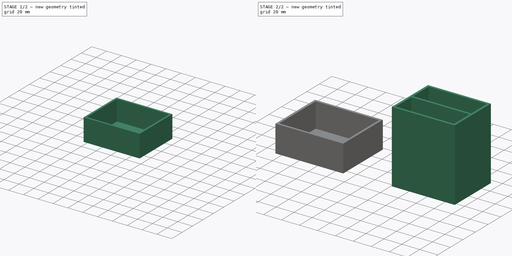
[diagram: build sequence overview — one tinted view per stage of 2, left to right]
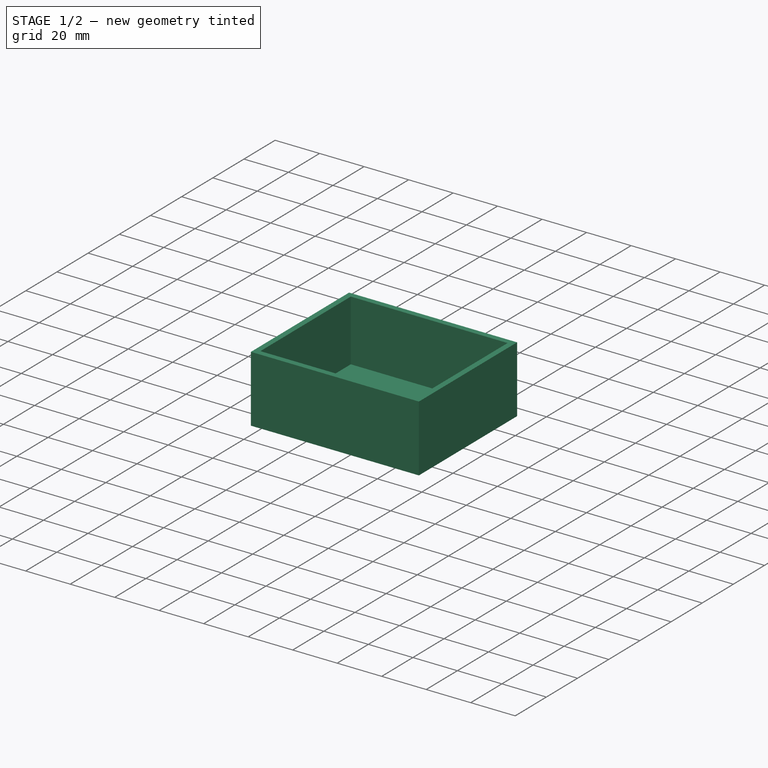
[diagram: stage 1 of 2 — iso view after this stage's code; geometry added in this stage tinted green]
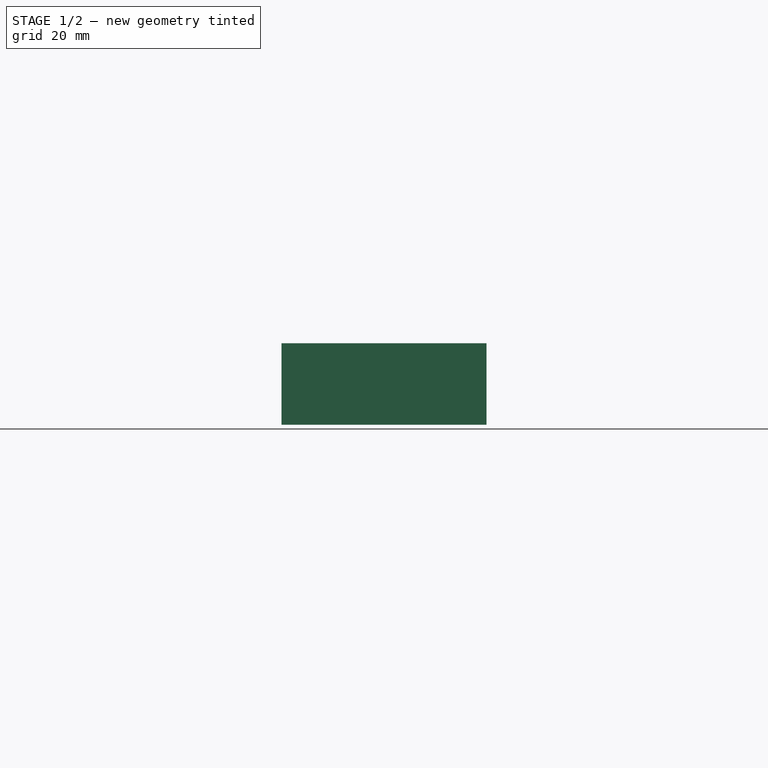
[diagram: stage 1 of 2 — front view after this stage's code; geometry added in this stage tinted green]
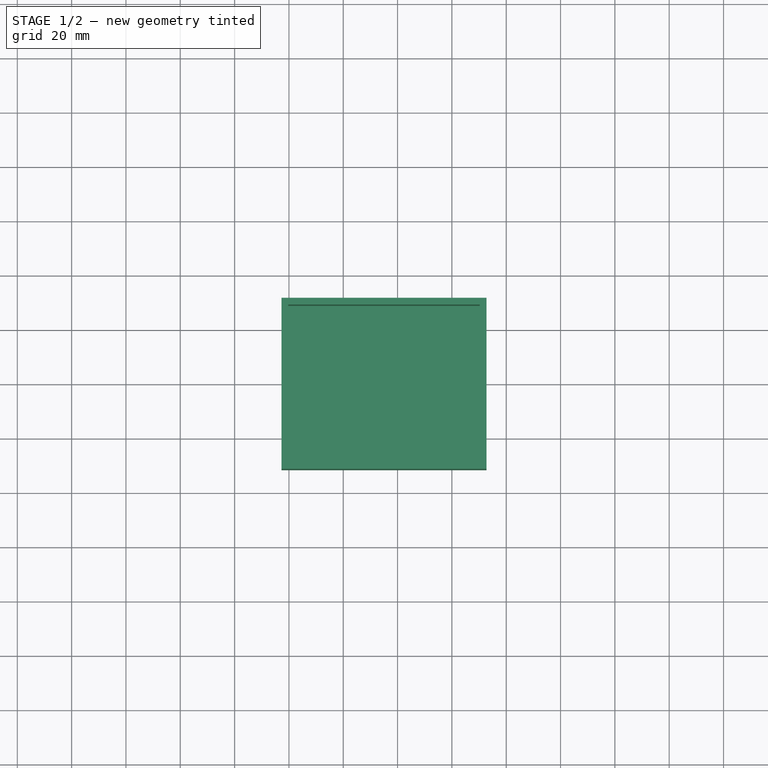
[diagram: stage 1 of 2 — top view after this stage's code; geometry added in this stage tinted green]
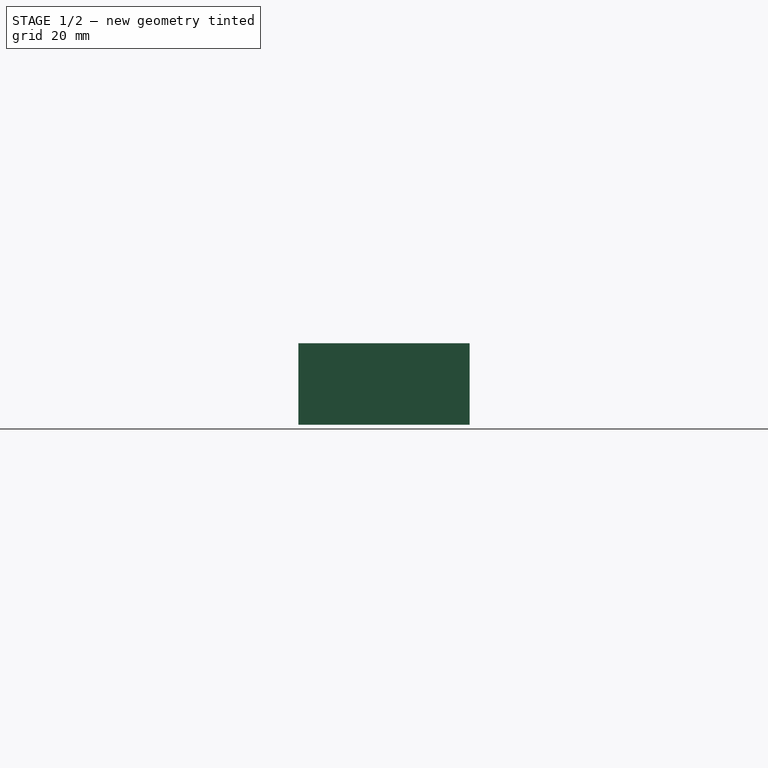
[diagram: stage 1 of 2 — right view after this stage's code; geometry added in this stage tinted green]
FCSTD DOCUMENT  (FreeCAD 0.21R33771 (Git))
Label: CardBox
License: All rights reserved
LicenseURL: https://en.wikipedia.org/wiki/All_rights_reserved
objects: Sketcher::SketchObject×4, PartDesign::Pad×2, PartDesign::Pocket×2, PartDesign::Body×2
note: 14 computed .brp shape members not serialized (recipe doc carries the construction recipe); baked Part::Feature solids carry a one-line shape summary decoded from their .brp

FEATURE [PartDesign::Body] Body  label="Box"
  Group = -> [Sketch,Pad,Sketch001,Pocket]
  Origin = -> Origin
  Tip = -> Pocket
FEATURE [Sketcher::SketchObject] Sketch002  label="LidS"
  FullyConstrained = true
  MapMode = 5
  Support = -> [XY_Plane001]
  sketch-geometry (5):
    g0: LineSegment StartX=-162.75 StartY=31.5 StartZ=0 EndX=-162.75 EndY=-31.5 EndZ=0
    g1: LineSegment StartX=-162.75 StartY=-31.5 StartZ=0 EndX=-87.25 EndY=-31.5 EndZ=0
    g2: LineSegment StartX=-87.25 StartY=-31.5 StartZ=0 EndX=-87.25 EndY=31.5 EndZ=0
    g3: LineSegment StartX=-87.25 StartY=31.5 StartZ=0 EndX=-162.75 EndY=31.5 EndZ=0
    g4: GeomPoint X=-125 Y=0 Z=0
  constraints (13):
    c: Coincident(g0,g1)
    c: Coincident(g1,g2)
    c: Coincident(g2,g3)
    c: Coincident(g3,g0)
    c: Horizontal(g1)
    c: Horizontal(g3)
    c: Vertical(g0)
    c: Vertical(g2)
    c: Symmetric(g1,g0,g4)
    c: PointOnObject(g4,g-1)
    c: Distance(g3) = 75.5
    c: Distance(g0) = 63
    c: DistanceX(g4,g-1) = 125
FEATURE [PartDesign::Pad] Pad001  label="LidSP"
  Direction = (0,0,1)
  Length = 30
  Length2 = 10
  Profile = -> Sketch002
  ReferenceAxis = -> Sketch002 [N_Axis]
  Type = 0
FEATURE [Sketcher::SketchObject] Sketch003  label="InsetS2"
  ExternalGeometry = -> [Pad001]
  FullyConstrained = true
  MapMode = 5
  Placement = pos=(0,0,30) rot=(0,0,1;0rad)
  Support = -> [Pad001]
  sketch-geometry (5):
    g0: LineSegment StartX=-160.25 StartY=29 StartZ=0 EndX=-160.25 EndY=-29 EndZ=0
    g1: LineSegment StartX=-160.25 StartY=-29 StartZ=0 EndX=-89.75 EndY=-29 EndZ=0
    g2: LineSegment StartX=-89.75 StartY=-29 StartZ=0 EndX=-89.75 EndY=29 EndZ=0
    g3: LineSegment StartX=-89.75 StartY=29 StartZ=0 EndX=-160.25 EndY=29 EndZ=0
    g4: GeomPoint X=-125 Y=0 Z=0
  constraints (13):
    c: Coincident(g0,g1)
    c: Coincident(g1,g2)
    c: Coincident(g2,g3)
    c: Coincident(g3,g0)
    c: Horizontal(g1)
    c: Horizontal(g3)
    c: Vertical(g0)
    c: Vertical(g2)
    c: Symmetric(g1,g0,g4)
    c: PointOnObject(g4,g-1)
    c: DistanceX(g-4,g0) = 2.5
    c: DistanceY(g0,g-4) = 2.5
    c: DistanceX(g1,g-6) = 2.5
FEATURE [PartDesign::Pocket] Pocket001  label="InsetSP2"
  BaseFeature = -> Pad001
  Direction = (0,0,-1)
  Length = 27.5
  Length2 = 5
  Profile = -> Sketch003
  ReferenceAxis = -> Sketch003 [N_Axis]
  Type = 0
FEATURE [PartDesign::Body] Body001  label="Lid"
  Group = -> [Sketch002,Pad001,Sketch003,Pocket001]
  Origin = -> Origin001
  Tip = -> Pocket001
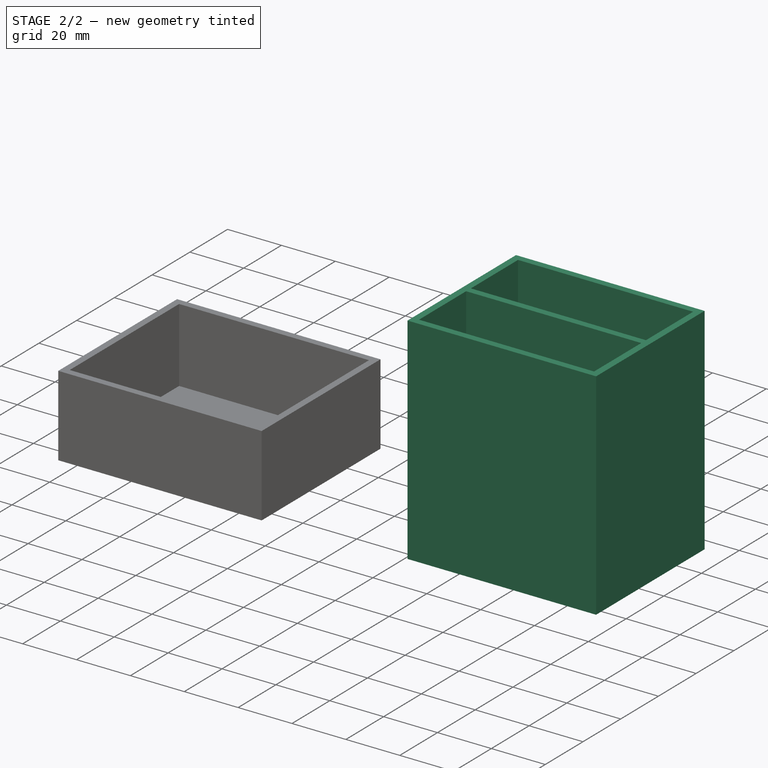
[diagram: stage 2 of 2 — iso view after this stage's code; geometry added in this stage tinted green]
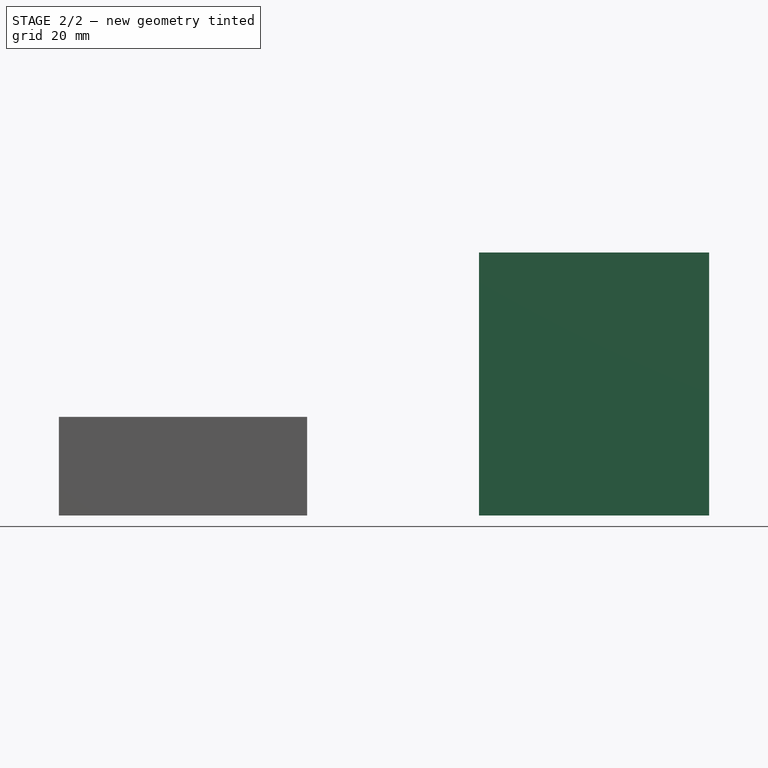
[diagram: stage 2 of 2 — front view after this stage's code; geometry added in this stage tinted green]
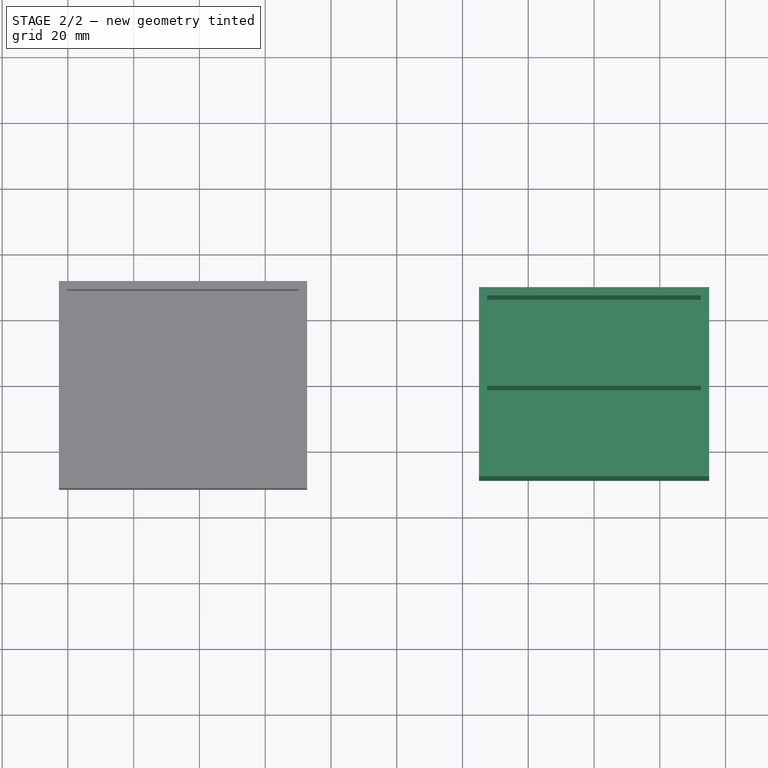
[diagram: stage 2 of 2 — top view after this stage's code; geometry added in this stage tinted green]
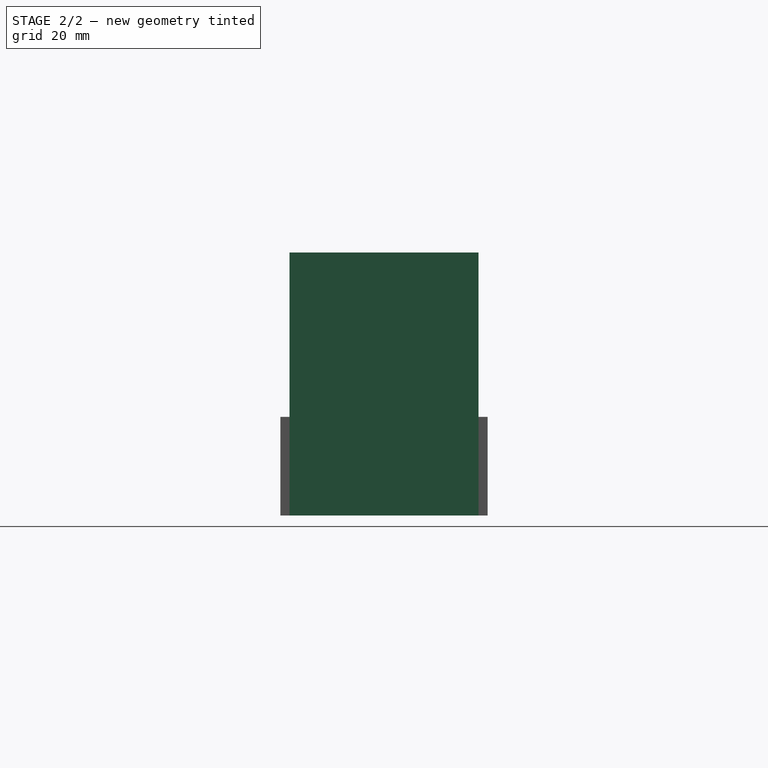
[diagram: stage 2 of 2 — right view after this stage's code; geometry added in this stage tinted green]
FEATURE [Sketcher::SketchObject] Sketch  label="BoxS"
  FullyConstrained = true
  MapMode = 5
  Support = -> [XY_Plane]
  sketch-geometry (5):
    g0: LineSegment StartX=-35 StartY=28.75 StartZ=0 EndX=-35 EndY=-28.75 EndZ=0
    g1: LineSegment StartX=-35 StartY=-28.75 StartZ=0 EndX=35 EndY=-28.75 EndZ=0
    g2: LineSegment StartX=35 StartY=-28.75 StartZ=0 EndX=35 EndY=28.75 EndZ=0
    g3: LineSegment StartX=35 StartY=28.75 StartZ=0 EndX=-35 EndY=28.75 EndZ=0
    g4: GeomPoint X=0 Y=0 Z=0
  constraints (12):
    c: Coincident(g0,g1)
    c: Coincident(g1,g2)
    c: Coincident(g2,g3)
    c: Coincident(g3,g0)
    c: Horizontal(g1)
    c: Horizontal(g3)
    c: Vertical(g0)
    c: Vertical(g2)
    c: Symmetric(g1,g0,g4)
    c: Coincident(g4,g-1)
    c: Distance(g2) = 57.5
    c: Distance(g3) = 70
FEATURE [PartDesign::Pad] Pad  label="BoxSP"
  Direction = (0,0,1)
  Length = 80
  Length2 = 10
  Profile = -> Sketch
  ReferenceAxis = -> Sketch [N_Axis]
  Type = 0
FEATURE [Sketcher::SketchObject] Sketch001  label="InsetsS"
  ExternalGeometry = -> [Pad]
  FullyConstrained = true
  MapMode = 5
  Placement = pos=(0,0,80) rot=(0,0,1;0rad)
  Support = -> [Pad]
  sketch-geometry (10):
    g0: LineSegment StartX=-32.5 StartY=26.25 StartZ=0 EndX=-32.5 EndY=1.25 EndZ=0
    g1: LineSegment StartX=-32.5 StartY=1.25 StartZ=0 EndX=32.5 EndY=1.25 EndZ=0
    g2: LineSegment StartX=32.5 StartY=1.25 StartZ=0 EndX=32.5 EndY=26.25 EndZ=0
    g3: LineSegment StartX=32.5 StartY=26.25 StartZ=0 EndX=-32.5 EndY=26.25 EndZ=0
    g4: GeomPoint X=0 Y=13.75 Z=0
    g5: LineSegment StartX=32.5 StartY=-1.25 StartZ=0 EndX=32.5 EndY=-26.25 EndZ=0
    g6: LineSegment StartX=32.5 StartY=-26.25 StartZ=0 EndX=-32.5 EndY=-26.25 EndZ=0
    g7: LineSegment StartX=-32.5 StartY=-26.25 StartZ=0 EndX=-32.5 EndY=-1.25 EndZ=0
    g8: LineSegment StartX=-32.5 StartY=-1.25 StartZ=0 EndX=32.5 EndY=-1.25 EndZ=0
    g9: GeomPoint X=0 Y=-13.75 Z=0
  constraints (26):
    c: Coincident(g0,g1)
    c: Coincident(g1,g2)
    c: Coincident(g2,g3)
    c: Coincident(g3,g0)
    c: Horizontal(g1)
    c: Horizontal(g3)
    c: Vertical(g0)
    c: Vertical(g2)
    c: Symmetric(g1,g0,g4)
    c: Coincident(g5,g6)
    c: Coincident(g6,g7)
    c: Coincident(g7,g8)
    c: Coincident(g8,g5)
    c: Horizontal(g6)
    c: Horizontal(g8)
    c: Vertical(g5)
    c: Vertical(g7)
    c: Symmetric(g6,g5,g9)
    c: PointOnObject(g9,g-2)
    c: PointOnObject(g4,g-2)
    c: DistanceX(g-6,g0) = 2.5
    c: DistanceY(g0,g-6) = 2.5
    c: DistanceX(g5,g-5) = 2.5
    c: DistanceY(g-5,g5) = 2.5
    c: Distance(g0) = 25
    c: Distance(g7) = 25
FEATURE [PartDesign::Pocket] Pocket  label="InsetsSP"
  BaseFeature = -> Pad
  Direction = (0,0,-1)
  Length = 75
  Length2 = 5
  Profile = -> Sketch001
  ReferenceAxis = -> Sketch001 [N_Axis]
  Type = 0
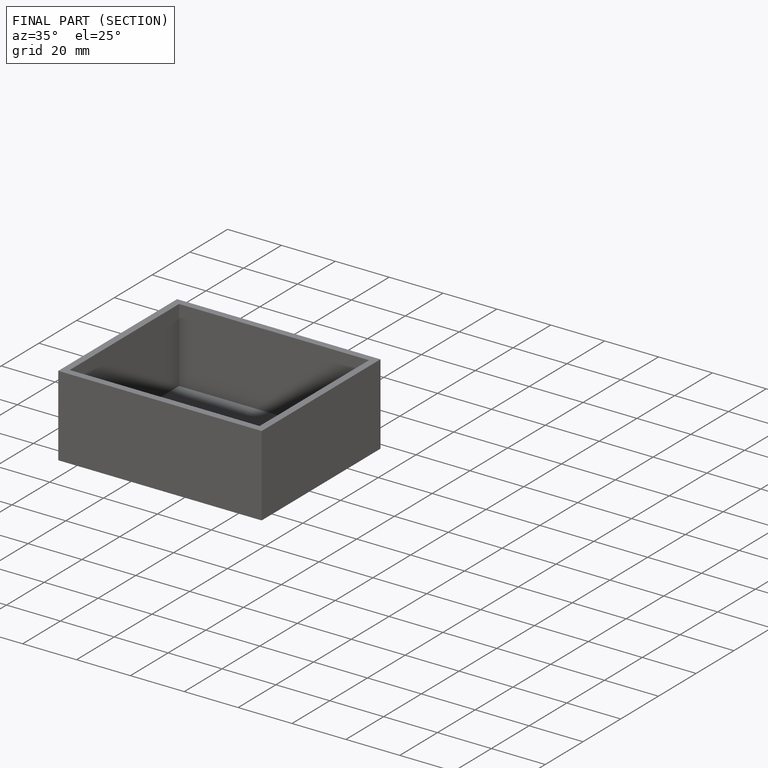
[diagram: finished part — half-section view (interior)]
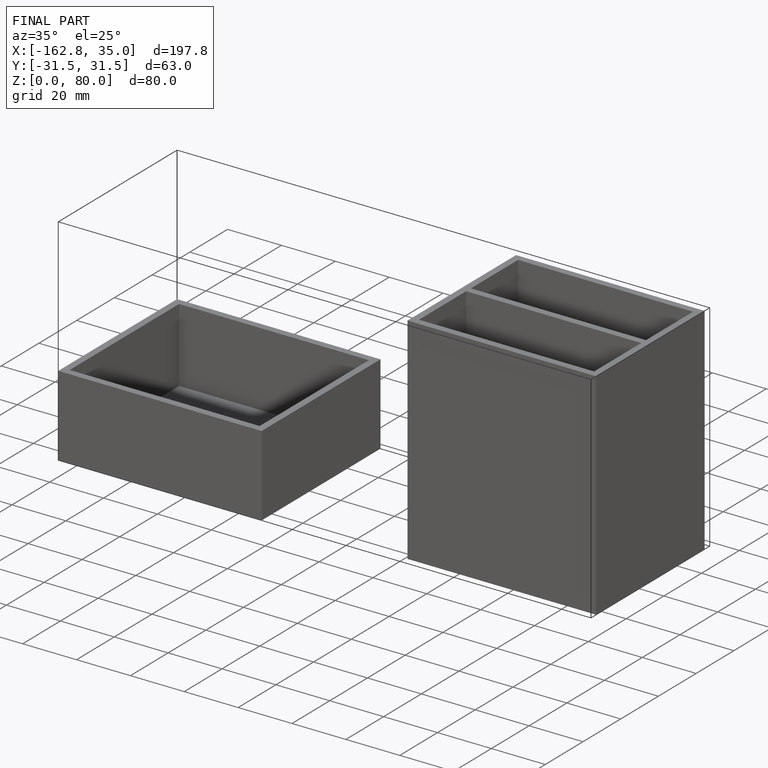
[diagram: finished part — iso view with bounding-box wireframe]
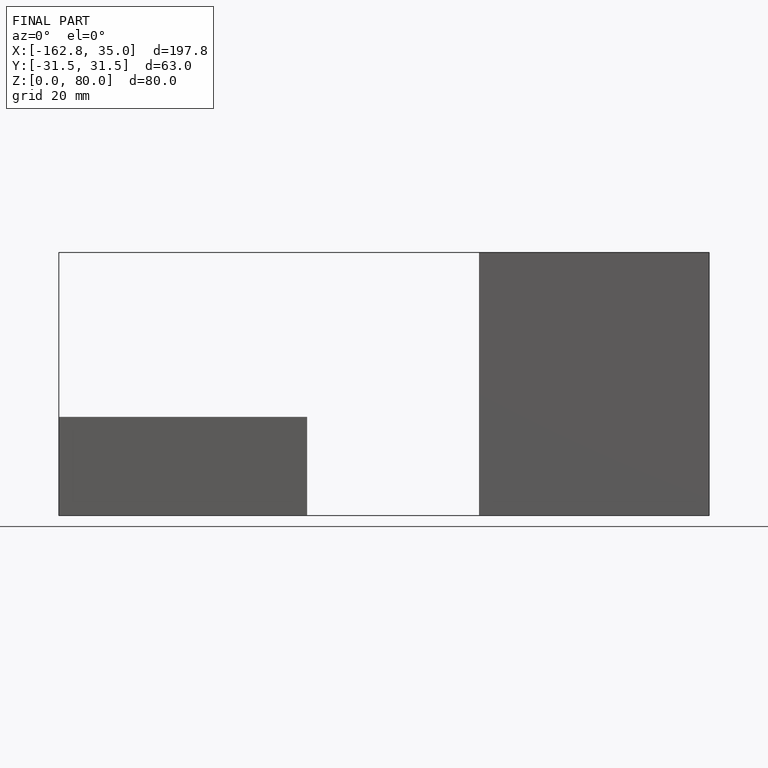
[diagram: finished part — front view with bounding-box wireframe]
